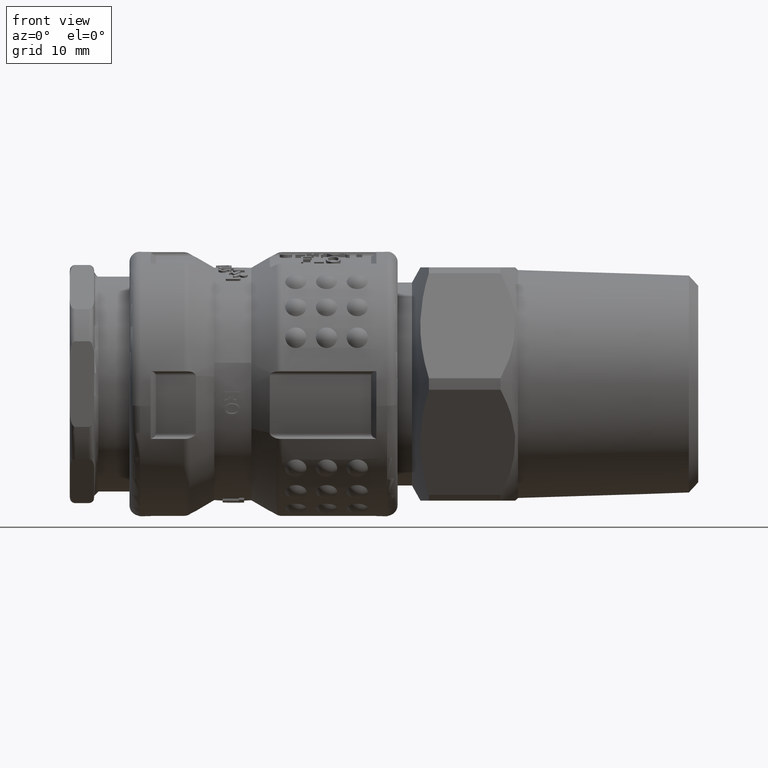
[diagram: clean part render]
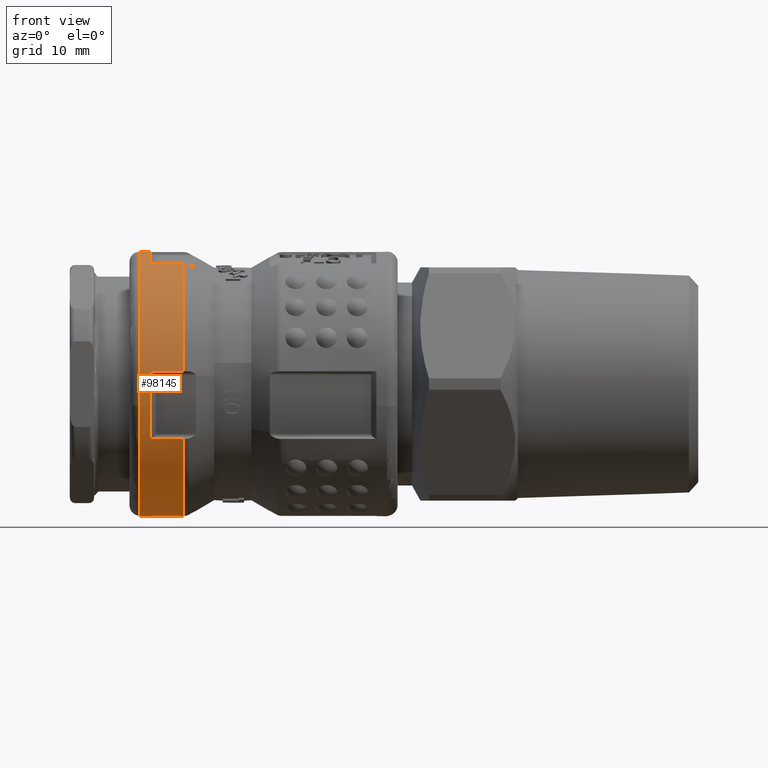
[diagram: same view with one face highlighted and labeled with its STEP entity id]
A machine part, front view. The second image highlights one B-rep face of the part: STEP entity #98145.
In plain terms, the highlighted cylindrical surface (bore or boss wall) has radius 12.5 mm, axis along (-1, 0, 0).
Its self-contained STEP definition (entity closure, byte-faithful):
#97587=CARTESIAN_POINT('',(10.761774596215554,-5.179721047903328,11.376312665618304));
#97588=VERTEX_POINT('',#97587);
#97589=CARTESIAN_POINT('',(10.761774596215554,-12.442036293771777,1.202386320807912));
#97590=VERTEX_POINT('',#97589);
#97591=CARTESIAN_POINT('',(10.761774596215554,-2.170716E-016,-1.762176E-030));
#97592=DIRECTION('',(1.000000000000000,-1.962343E-017,-3.276841E-018));
#97593=DIRECTION('',(1.989514E-017,0.986342773374073,0.164705596179189));
#97594=AXIS2_PLACEMENT_3D('',#97591,#97592,#97593);
#97595=CIRCLE('',#97594,12.500000000000004);
#97596=EDGE_CURVE('',#97588,#97590,#97595,.T.);
#97733=CARTESIAN_POINT('',(10.761774596215554,-11.376312665618304,-5.179721047903327));
#97734=VERTEX_POINT('',#97733);
#97742=CARTESIAN_POINT('',(10.761774596215554,-1.202386320807913,-12.442036293771777));
#97743=VERTEX_POINT('',#97742);
#97744=CARTESIAN_POINT('',(10.761774596215554,-2.170716E-016,-1.762176E-030));
#97745=DIRECTION('',(1.000000000000000,-1.962343E-017,-3.276841E-018));
#97746=DIRECTION('',(1.989514E-017,0.986342773374073,0.164705596179189));
#97747=AXIS2_PLACEMENT_3D('',#97744,#97745,#97746);
#97748=CIRCLE('',#97747,12.500000000000004);
#97749=EDGE_CURVE('',#97734,#97743,#97748,.T.);
#97984=CARTESIAN_POINT('',(10.761774596215554,5.179721047903327,-11.376312665618304));
#97985=VERTEX_POINT('',#97984);
#97993=CARTESIAN_POINT('',(10.761774596215554,12.442036293771778,-1.202386320807913));
#97994=VERTEX_POINT('',#97993);
#97995=CARTESIAN_POINT('',(10.761774596215554,-2.170716E-016,-1.762176E-030));
#97996=DIRECTION('',(1.000000000000000,-1.962343E-017,-3.276841E-018));
#97997=DIRECTION('',(1.989514E-017,0.986342773374073,0.164705596179189));
#97998=AXIS2_PLACEMENT_3D('',#97995,#97996,#97997);
#97999=CIRCLE('',#97998,12.500000000000004);
#98000=EDGE_CURVE('',#97985,#97994,#97999,.T.);
#98021=CARTESIAN_POINT('',(8.328761894323339,-1.679963E-016,-1.360994E-030));
#98022=DIRECTION('',(-1.0,2.017062E-017,1.648912E-031));
#98023=DIRECTION('',(-1.989514E-017,-0.986342773374073,-0.164705596179189));
#98024=AXIS2_PLACEMENT_3D('',#98021,#98022,#98023);
#98025=CYLINDRICAL_SURFACE('',#98024,12.500000000000005);
#98026=CARTESIAN_POINT('',(6.627800000000001,-12.329284667175918,-2.058819952239861));
#98027=VERTEX_POINT('',#98026);
#98028=CARTESIAN_POINT('',(6.627800000000001,-1.336868E-016,-1.080520E-030));
#98029=DIRECTION('',(-1.000000000000000,1.962343E-017,3.276841E-018));
#98030=DIRECTION('',(1.989514E-017,0.986342773374073,0.164705596179189));
#98031=AXIS2_PLACEMENT_3D('',#98028,#98029,#98030);
#98032=CIRCLE('',#98031,12.500000000000004);
#98033=EDGE_CURVE('',#98027,#98027,#98032,.T.);
#98034=ORIENTED_EDGE('',*,*,#98033,.F.);
#98035=EDGE_LOOP('',(#98034));
#98036=FACE_OUTER_BOUND('',#98035,.T.);
#98037=ORIENTED_EDGE('',*,*,#97596,.F.);
#98038=CARTESIAN_POINT('',(7.627800000000001,-5.179721047903328,11.376312665618302));
#98039=VERTEX_POINT('',#98038);
#98040=CARTESIAN_POINT('',(10.761774596215556,-5.179721047903328,11.376312665618302));
#98041=DIRECTION('',(-1.0,0.0,0.0));
#98042=VECTOR('',#98041,3.133974596215556);
#98043=LINE('',#98040,#98042);
#98044=EDGE_CURVE('',#97588,#98039,#98043,.T.);
#98045=ORIENTED_EDGE('',*,*,#98044,.T.);
#98046=CARTESIAN_POINT('',(7.627800000000001,1.202386320807911,12.442036293771777));
#98047=VERTEX_POINT('',#98046);
#98048=CARTESIAN_POINT('',(7.627799999999997,-1.538574E-016,-1.245411E-030));
#98049=DIRECTION('',(-1.000000000000000,1.962343E-017,3.276841E-018));
#98050=DIRECTION('',(-1.989514E-017,-0.986342773374073,-0.164705596179189));
#98051=AXIS2_PLACEMENT_3D('',#98048,#98049,#98050);
#98052=CIRCLE('',#98051,12.500000000000004);
#98053=EDGE_CURVE('',#98039,#98047,#98052,.T.);
#98054=ORIENTED_EDGE('',*,*,#98053,.T.);
#98055=CARTESIAN_POINT('',(10.761774596215554,1.202386320807911,12.442036293771777));
#98056=VERTEX_POINT('',#98055);
#98057=CARTESIAN_POINT('',(7.627800000000001,1.202386320807911,12.442036293771777));
#98058=DIRECTION('',(1.0,0.0,0.0));
#98059=VECTOR('',#98058,3.133974596215555);
#98060=LINE('',#98057,#98059);
#98061=EDGE_CURVE('',#98047,#98056,#98060,.T.);
#98062=ORIENTED_EDGE('',*,*,#98061,.T.);
#98063=CARTESIAN_POINT('',(10.761774596215554,11.376312665618304,5.179721047903326));
#98064=VERTEX_POINT('',#98063);
#98065=CARTESIAN_POINT('',(10.761774596215554,-2.170716E-016,-1.762176E-030));
#98066=DIRECTION('',(1.000000000000000,-1.962343E-017,-3.276841E-018));
#98067=DIRECTION('',(1.989514E-017,0.986342773374073,0.164705596179189));
#98068=AXIS2_PLACEMENT_3D('',#98065,#98066,#98067);
#98069=CIRCLE('',#98068,12.500000000000004);
#98070=EDGE_CURVE('',#98064,#98056,#98069,.T.);
#98071=ORIENTED_EDGE('',*,*,#98070,.F.);
#98072=CARTESIAN_POINT('',(7.627800000000001,11.376312665618302,5.179721047903326));
#98073=VERTEX_POINT('',#98072);
#98074=CARTESIAN_POINT('',(10.761774596215556,11.376312665618302,5.179721047903327));
#98075=DIRECTION('',(-1.0,0.0,0.0));
#98076=VECTOR('',#98075,3.133974596215556);
#98077=LINE('',#98074,#98076);
#98078=EDGE_CURVE('',#98064,#98073,#98077,.T.);
#98079=ORIENTED_EDGE('',*,*,#98078,.T.);
#98080=CARTESIAN_POINT('',(7.627800000000002,12.442036293771778,-1.202386320807913));
#98081=VERTEX_POINT('',#98080);
#98082=CARTESIAN_POINT('',(7.627799999999997,-1.538574E-016,-1.245411E-030));
#98083=DIRECTION('',(-1.000000000000000,1.962343E-017,3.276841E-018));
#98084=DIRECTION('',(-1.989514E-017,-0.986342773374073,-0.164705596179189));
#98085=AXIS2_PLACEMENT_3D('',#98082,#98083,#98084);
#98086=CIRCLE('',#98085,12.500000000000004);
#98087=EDGE_CURVE('',#98073,#98081,#98086,.T.);
#98088=ORIENTED_EDGE('',*,*,#98087,.T.);
#98089=CARTESIAN_POINT('',(7.627800000000001,12.442036293771777,-1.202386320807913));
#98090=DIRECTION('',(1.0,0.0,0.0));
#98091=VECTOR('',#98090,3.133974596215555);
#98092=LINE('',#98089,#98091);
#98093=EDGE_CURVE('',#98081,#97994,#98092,.T.);
#98094=ORIENTED_EDGE('',*,*,#98093,.T.);
#98095=ORIENTED_EDGE('',*,*,#98000,.F.);
#98096=CARTESIAN_POINT('',(7.627800000000001,5.179721047903327,-11.376312665618302));
#98097=VERTEX_POINT('',#98096);
#98098=CARTESIAN_POINT('',(10.761774596215556,5.179721047903327,-11.376312665618302));
#98099=DIRECTION('',(-1.0,0.0,0.0));
#98100=VECTOR('',#98099,3.133974596215556);
#98101=LINE('',#98098,#98100);
#98102=EDGE_CURVE('',#97985,#98097,#98101,.T.);
#98103=ORIENTED_EDGE('',*,*,#98102,.T.);
#98104=CARTESIAN_POINT('',(7.627800000000001,-1.202386320807913,-12.442036293771777));
#98105=VERTEX_POINT('',#98104);
#98106=CARTESIAN_POINT('',(7.627799999999997,-1.538574E-016,-1.245411E-030));
#98107=DIRECTION('',(-1.000000000000000,1.962343E-017,3.276841E-018));
#98108=DIRECTION('',(-1.989514E-017,-0.986342773374073,-0.164705596179189));
#98109=AXIS2_PLACEMENT_3D('',#98106,#98107,#98108);
#98110=CIRCLE('',#98109,12.500000000000004);
#98111=EDGE_CURVE('',#98097,#98105,#98110,.T.);
#98112=ORIENTED_EDGE('',*,*,#98111,.T.);
#98113=CARTESIAN_POINT('',(7.627800000000001,-1.202386320807914,-12.442036293771777));
#98114=DIRECTION('',(1.0,0.0,0.0));
#98115=VECTOR('',#98114,3.133974596215555);
#98116=LINE('',#98113,#98115);
#98117=EDGE_CURVE('',#98105,#97743,#98116,.T.);
#98118=ORIENTED_EDGE('',*,*,#98117,.T.);
#98119=ORIENTED_EDGE('',*,*,#97749,.F.);
#98120=CARTESIAN_POINT('',(7.627799999999999,-11.376312665618302,-5.179721047903327));
#98121=VERTEX_POINT('',#98120);
#98122=CARTESIAN_POINT('',(10.761774596215556,-11.376312665618302,-5.179721047903327));
#98123=DIRECTION('',(-1.0,0.0,0.0));
#98124=VECTOR('',#98123,3.133974596215556);
#98125=LINE('',#98122,#98124);
#98126=EDGE_CURVE('',#97734,#98121,#98125,.T.);
#98127=ORIENTED_EDGE('',*,*,#98126,.T.);
#98128=CARTESIAN_POINT('',(7.627800000000001,-12.442036293771777,1.202386320807912));
#98129=VERTEX_POINT('',#98128);
#98130=CARTESIAN_POINT('',(7.627799999999997,-1.538574E-016,-1.245411E-030));
#98131=DIRECTION('',(-1.000000000000000,1.962343E-017,3.276841E-018));
#98132=DIRECTION('',(-1.989514E-017,-0.986342773374073,-0.164705596179189));
#98133=AXIS2_PLACEMENT_3D('',#98130,#98131,#98132);
#98134=CIRCLE('',#98133,12.500000000000004);
#98135=EDGE_CURVE('',#98121,#98129,#98134,.T.);
#98136=ORIENTED_EDGE('',*,*,#98135,.T.);
#98137=CARTESIAN_POINT('',(7.627800000000001,-12.442036293771777,1.202386320807912));
#98138=DIRECTION('',(1.0,0.0,0.0));
#98139=VECTOR('',#98138,3.133974596215555);
#98140=LINE('',#98137,#98139);
#98141=EDGE_CURVE('',#98129,#97590,#98140,.T.);
#98142=ORIENTED_EDGE('',*,*,#98141,.T.);
#98143=EDGE_LOOP('',(#98037,#98045,#98054,#98062,#98071,#98079,#98088,#98094,#98095,#98103,#98112,#98118,#98119,#98127,#98136,#98142));
#98144=FACE_BOUND('',#98143,.T.);
#98145=ADVANCED_FACE('',(#98036,#98144),#98025,.T.);